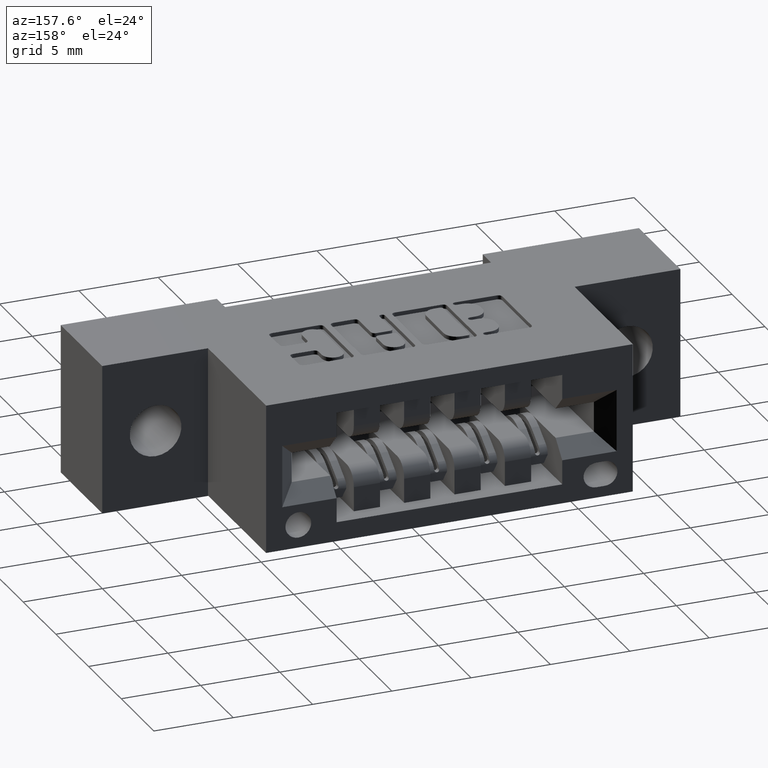
[diagram: clean part render]
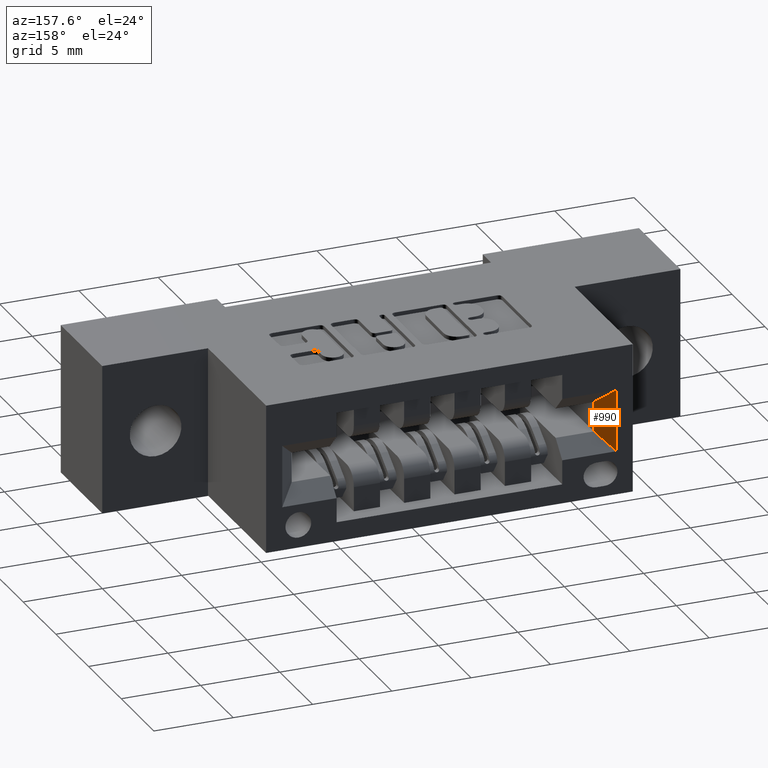
[diagram: same view with one face highlighted and labeled with its STEP entity id]
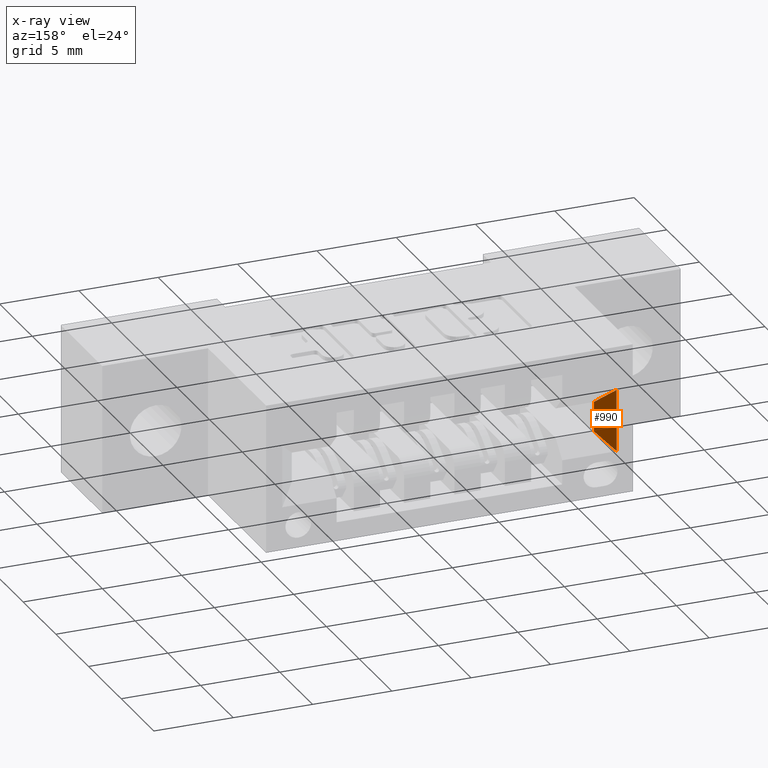
[diagram: x-ray of the same camera — body ghosted, the highlighted face saturated]
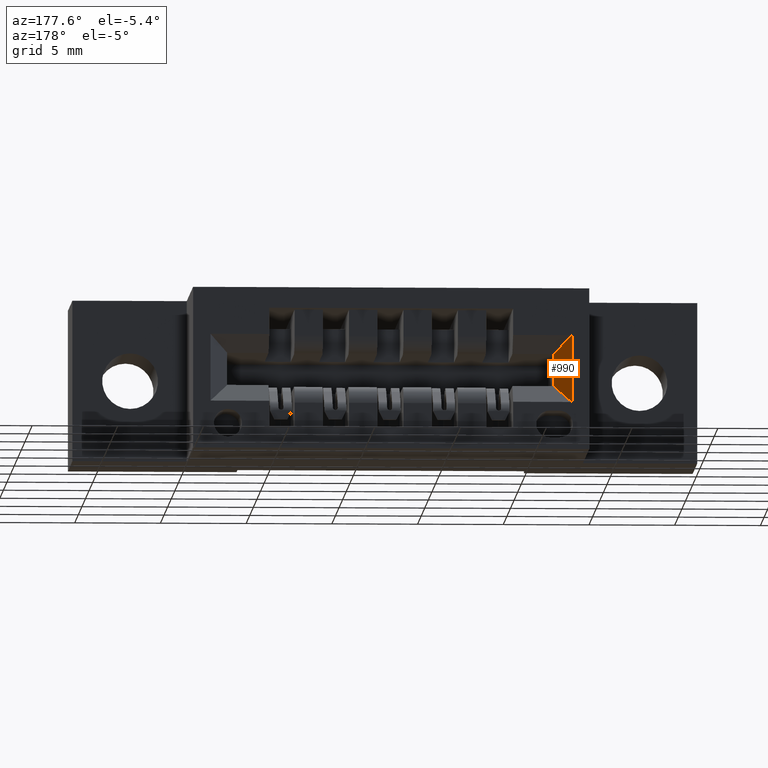
[diagram: same view with one face highlighted and labeled with its STEP entity id]
A machine part, auxiliary view. The second image highlights one B-rep face of the part: STEP entity #990.
The next image is the same camera in x-ray: the body ghosted, the highlighted face saturated — about 0% of this face is hidden behind the body in this view.
A second angle (auxiliary view) of the same face is appended — the face is thin or edge-on in the first view.
In plain terms, the highlighted planar face has unit normal (-0.7071, -0.7071, 0).
Its self-contained STEP definition (entity closure, byte-faithful):
#137 = VERTEX_POINT ( 'NONE', #7597 ) ;
#418 = DIRECTION ( 'NONE',  ( 0.0000000000000000000, 0.0000000000000000000, 1.000000000000000000 ) ) ;
#516 = CARTESIAN_POINT ( 'NONE',  ( 0.3425000000000000266, 0.5600000000000002753, -0.2220000000000000862 ) ) ;
#968 = FACE_OUTER_BOUND ( 'NONE', #1634, .T. ) ;
#990 = ADVANCED_FACE ( 'NONE', ( #968 ), #6034, .F. ) ;
#1606 = EDGE_CURVE ( 'NONE', #137, #5987, #2325, .T. ) ;
#1634 = EDGE_LOOP ( 'NONE', ( #6849, #4712, #4348, #7457 ) ) ;
#1683 = DIRECTION ( 'NONE',  ( -0.5773502691896269523, 0.5773502691896230665, -0.5773502691896269523 ) ) ;
#2057 = EDGE_CURVE ( 'NONE', #7843, #2181, #4220, .T. ) ;
#2181 = VERTEX_POINT ( 'NONE', #4822 ) ;
#2325 = LINE ( 'NONE', #516, #8131 ) ;
#2544 = AXIS2_PLACEMENT_3D ( 'NONE', #5991, #7254, #4852 ) ;
#3773 = EDGE_CURVE ( 'NONE', #137, #7843, #4266, .T. ) ;
#4220 = LINE ( 'NONE', #4762, #7077 ) ;
#4251 = CARTESIAN_POINT ( 'NONE',  ( 0.3025000000000000466, 0.5999999999999999778, -0.2620000000000000662 ) ) ;
#4266 = LINE ( 'NONE', #6148, #5926 ) ;
#4348 = ORIENTED_EDGE ( 'NONE', *, *, #2057, .F. ) ;
#4712 = ORIENTED_EDGE ( 'NONE', *, *, #5719, .F. ) ;
#4762 = CARTESIAN_POINT ( 'NONE',  ( 0.3425000000000000266, 0.5600000000000002753, -0.1480000000000000759 ) ) ;
#4822 = CARTESIAN_POINT ( 'NONE',  ( 0.3025000000000000466, 0.5999999999999999778, -0.1080000000000000820 ) ) ;
#4852 = DIRECTION ( 'NONE',  ( 0.7071067811865499042, -0.7071067811865451302, 0.0000000000000000000 ) ) ;
#5442 = DIRECTION ( 'NONE',  ( -0.5773502691896269523, 0.5773502691896230665, 0.5773502691896269523 ) ) ;
#5719 = EDGE_CURVE ( 'NONE', #2181, #5987, #7139, .T. ) ;
#5866 = VECTOR ( 'NONE', #7765, 39.37007874015748143 ) ;
#5922 = CARTESIAN_POINT ( 'NONE',  ( 0.3025000000000000466, 0.5999999999999999778, -0.3700000000000001621 ) ) ;
#5926 = VECTOR ( 'NONE', #418, 39.37007874015748143 ) ;
#5987 = VERTEX_POINT ( 'NONE', #4251 ) ;
#5991 = CARTESIAN_POINT ( 'NONE',  ( 0.3425000000000000266, 0.5600000000000002753, -0.2220000000000000862 ) ) ;
#6034 = PLANE ( 'NONE',  #2544 ) ;
#6148 = CARTESIAN_POINT ( 'NONE',  ( 0.3425000000000000266, 0.5600000000000002753, -0.2220000000000000862 ) ) ;
#6849 = ORIENTED_EDGE ( 'NONE', *, *, #1606, .T. ) ;
#7077 = VECTOR ( 'NONE', #5442, 39.37007874015748854 ) ;
#7139 = LINE ( 'NONE', #5922, #5866 ) ;
#7254 = DIRECTION ( 'NONE',  ( -0.7071067811865451302, -0.7071067811865499042, 0.0000000000000000000 ) ) ;
#7457 = ORIENTED_EDGE ( 'NONE', *, *, #3773, .F. ) ;
#7519 = CARTESIAN_POINT ( 'NONE',  ( 0.3425000000000000266, 0.5600000000000002753, -0.1480000000000000759 ) ) ;
#7597 = CARTESIAN_POINT ( 'NONE',  ( 0.3425000000000000266, 0.5600000000000002753, -0.2220000000000000862 ) ) ;
#7765 = DIRECTION ( 'NONE',  ( 0.0000000000000000000, 0.0000000000000000000, -1.000000000000000000 ) ) ;
#7843 = VERTEX_POINT ( 'NONE', #7519 ) ;
#8131 = VECTOR ( 'NONE', #1683, 39.37007874015748854 ) ;